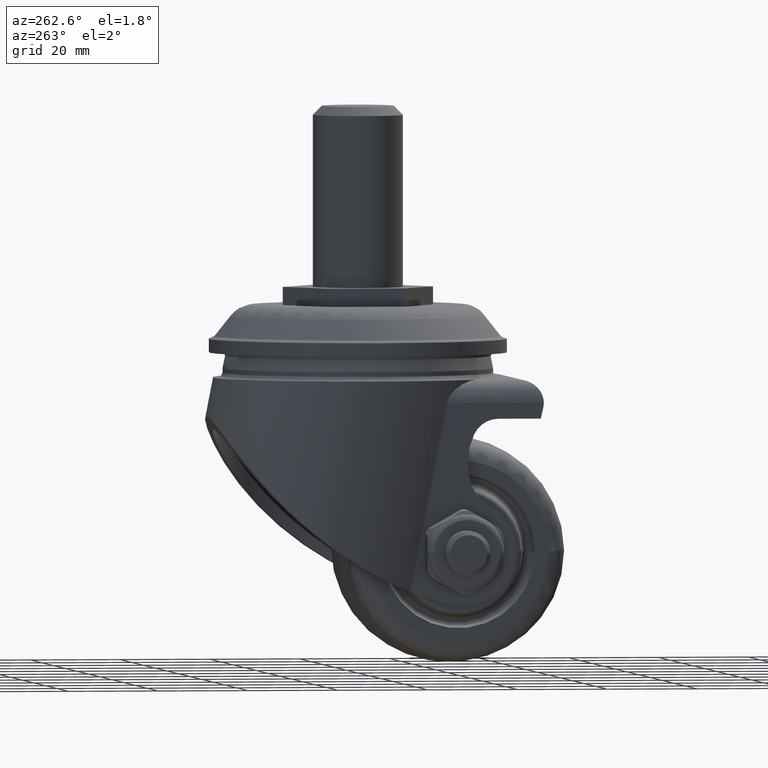
[diagram: clean part render]
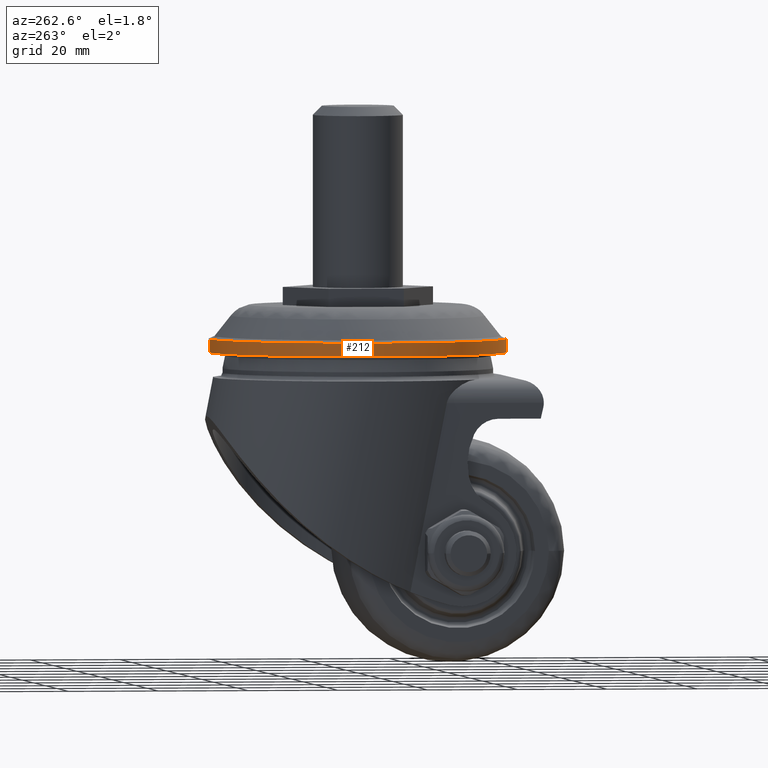
[diagram: same view with one face highlighted and labeled with its STEP entity id]
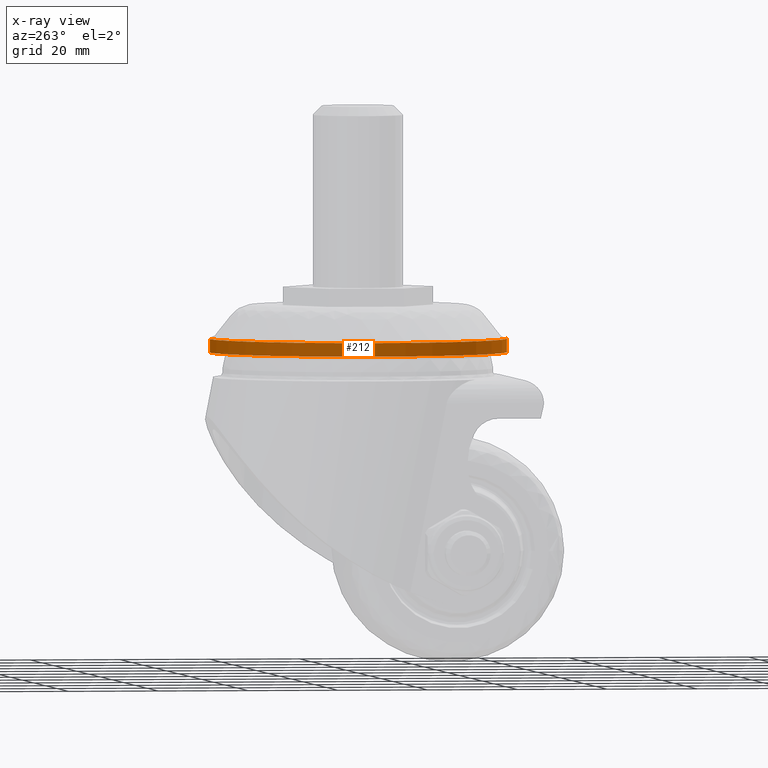
[diagram: x-ray of the same camera — body ghosted, the highlighted face saturated]
A machine part, auxiliary view. The second image highlights one B-rep face of the part: STEP entity #212.
The next image is the same camera in x-ray: the body ghosted, the highlighted face saturated — about 0% of this face is hidden behind the body in this view.
In plain terms, the highlighted cylindrical surface (partial cylindrical patch) has radius 33 mm, axis along (0, 0, -1).
Its self-contained STEP definition (entity closure, byte-faithful):
#212=ADVANCED_FACE('',(#1294),#1293,.T.);
#1293=CYLINDRICAL_SURFACE('',#2838,3.30000000000E+01);
#1294=FACE_OUTER_BOUND('',#2839,.T.);
#2835=CARTESIAN_POINT('',(0.00000000000E+00,0.00000000000E+00,-5.23598743740E-05));
#2836=DIRECTION('',(0.00000000000E+00,-1.00000000000E+00,-0.00000000000E+00));
#2837=DIRECTION('',(-0.00000000000E+00,-0.00000000000E+00,-1.00000000000E+00));
#2838=AXIS2_PLACEMENT_3D('',#2835,#2836,#2837);
#2839=EDGE_LOOP('',(#4156,#4157,#4158,#4159));
#4156=ORIENTED_EDGE('',*,*,#4605,.F.);
#4157=ORIENTED_EDGE('',*,*,#4677,.T.);
#4158=ORIENTED_EDGE('',*,*,#4608,.T.);
#4159=ORIENTED_EDGE('',*,*,#4678,.F.);
#4605=EDGE_CURVE('',#5920,#5919,#5927,.T.);
#4608=EDGE_CURVE('',#5947,#5948,#5949,.T.);
#4677=EDGE_CURVE('',#5920,#5947,#6389,.T.);
#4678=EDGE_CURVE('',#5919,#5948,#6395,.T.);
#5919=VERTEX_POINT('',#8348);
#5920=VERTEX_POINT('',#8349);
#5927=CIRCLE('',#8357,3.30000000000E+01);
#5947=VERTEX_POINT('',#8368);
#5948=VERTEX_POINT('',#8369);
#5949=CIRCLE('',#8373,3.30000000000E+01);
#6389=(BOUNDED_CURVE() B_SPLINE_CURVE(1,(#8671,#8672),.UNSPECIFIED.,.F.,.F.) B_SPLINE_CURVE_WITH_KNOTS((2,2),(8.33333233997E-02,9.16666663280E-01),.UNSPECIFIED.) CURVE() GEOMETRIC_REPRESENTATION_ITEM() RATIONAL_B_SPLINE_CURVE((1.00000000000E+00,1.00000000000E+00)) REPRESENTATION_ITEM('') );
#6395=(BOUNDED_CURVE() B_SPLINE_CURVE(1,(#8673,#8674),.UNSPECIFIED.,.F.,.F.) B_SPLINE_CURVE_WITH_KNOTS((2,2),(8.33333333333E-02,9.16666666667E-01),.UNSPECIFIED.) CURVE() GEOMETRIC_REPRESENTATION_ITEM() RATIONAL_B_SPLINE_CURVE((7.50000000000E-01,7.50000000000E-01)) REPRESENTATION_ITEM('') );
#8348=CARTESIAN_POINT('',(0.00000000000E+00,-7.48829699999E+00,3.29999476401E+01));
#8349=CARTESIAN_POINT('',(3.55271367880E-15,-7.48829699999E+00,-3.30000523599E+01));
#8354=CARTESIAN_POINT('',(0.00000000000E+00,-7.48829699999E+00,-5.23598743740E-05));
#8355=DIRECTION('',(0.00000000000E+00,1.00000000000E+00,-0.00000000000E+00));
#8356=DIRECTION('',(-1.22460635382E-16,0.00000000000E+00,1.00000000000E+00));
#8357=AXIS2_PLACEMENT_3D('',#8354,#8355,#8356);
#8368=CARTESIAN_POINT('',(3.55271367880E-15,-1.04882550000E+01,-3.30000523599E+01));
#8369=CARTESIAN_POINT('',(0.00000000000E+00,-1.04882550000E+01,3.29999476401E+01));
#8370=CARTESIAN_POINT('',(0.00000000000E+00,-1.04882550000E+01,-5.23598743740E-05));
#8371=DIRECTION('',(0.00000000000E+00,1.00000000000E+00,-0.00000000000E+00));
#8372=DIRECTION('',(-1.22460635382E-16,0.00000000000E+00,1.00000000000E+00));
#8373=AXIS2_PLACEMENT_3D('',#8370,#8371,#8372);
#8671=CARTESIAN_POINT('',(0.00000000000E+00,-7.48829696423E+00,-3.30000523599E+01));
#8672=CARTESIAN_POINT('',(0.00000000000E+00,-1.04882549878E+01,-3.30000523599E+01));
#8673=CARTESIAN_POINT('',(-1.18423789293E-15,-7.48829699999E+00,3.29999476401E+01));
#8674=CARTESIAN_POINT('',(-1.18423789293E-15,-1.04882550000E+01,3.29999476401E+01));